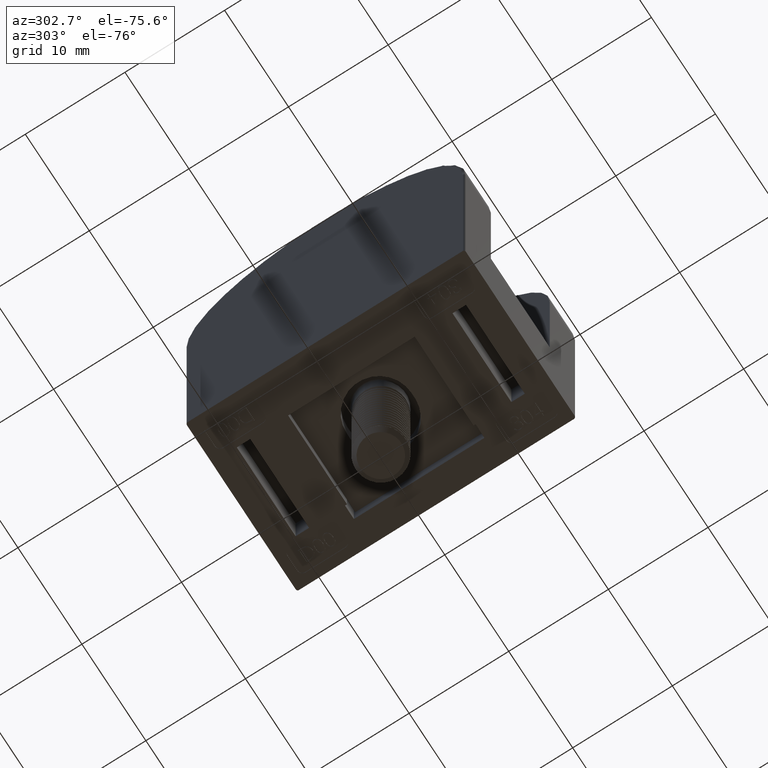
[diagram: clean part render]
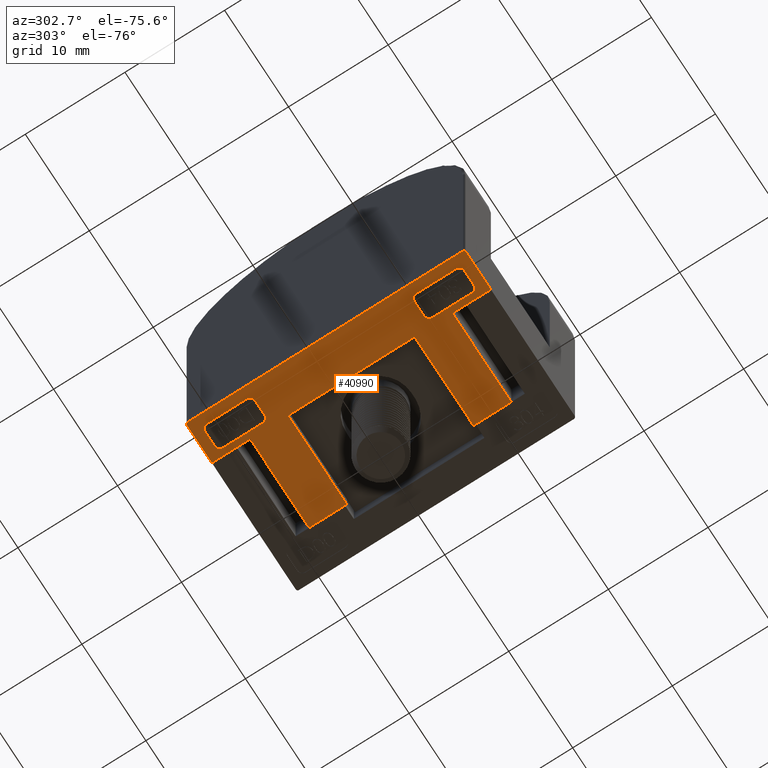
[diagram: same view with one face highlighted and labeled with its STEP entity id]
A machine part, auxiliary view. The second image highlights one B-rep face of the part: STEP entity #40990.
In plain terms, the highlighted planar face has unit normal (0, 0, 1).
Its self-contained STEP definition (entity closure, byte-faithful):
#13 = CARTESIAN_POINT ( 'NONE',  ( 13.29999999999999900, 6.350000000000008500, -1.914145517036476900E-015 ) ) ;
#521 = CIRCLE ( 'NONE', #36528, 0.5000000000000000000 ) ;
#989 = VERTEX_POINT ( 'NONE', #28238 ) ;
#1616 = VERTEX_POINT ( 'NONE', #13016 ) ;
#1742 = EDGE_CURVE ( 'NONE', #30986, #40686, #20142, .T. ) ;
#1923 = EDGE_CURVE ( 'NONE', #45114, #13821, #29568, .T. ) ;
#2369 = CARTESIAN_POINT ( 'NONE',  ( 1.000000000000000000, -8.499999999999992900, 0.0000000000000000000 ) ) ;
#2475 = LINE ( 'NONE', #40450, #10675 ) ;
#2827 = VECTOR ( 'NONE', #51749, 1000.000000000000000 ) ;
#2835 = ORIENTED_EDGE ( 'NONE', *, *, #1923, .F. ) ;
#2936 = CARTESIAN_POINT ( 'NONE',  ( 4.099999999999999600, 13.99999999999999500, -3.469446951953614200E-015 ) ) ;
#3229 = EDGE_CURVE ( 'NONE', #1616, #44815, #50293, .T. ) ;
#3264 = DIRECTION ( 'NONE',  ( 1.000000000000000000, 0.0000000000000000000, 0.0000000000000000000 ) ) ;
#3273 = CARTESIAN_POINT ( 'NONE',  ( 0.0000000000000000000, 13.99999999999999500, -3.469446951953614200E-015 ) ) ;
#3366 = DIRECTION ( 'NONE',  ( 0.0000000000000000000, 1.000000000000000000, 1.667627088515426900E-017 ) ) ;
#3613 = CARTESIAN_POINT ( 'NONE',  ( 4.099999999999999600, 13.99999999999999500, -3.469446951953614200E-015 ) ) ;
#3761 = EDGE_CURVE ( 'NONE', #38984, #26485, #37691, .T. ) ;
#3776 = DIRECTION ( 'NONE',  ( -0.0000000000000000000, 0.0000000000000000000, 1.000000000000000000 ) ) ;
#4058 = CARTESIAN_POINT ( 'NONE',  ( 4.099999999999999600, 13.99999999999999500, -3.469446951953614200E-015 ) ) ;
#4098 = LINE ( 'NONE', #3273, #2827 ) ;
#4386 = DIRECTION ( 'NONE',  ( 1.000000000000000000, 0.0000000000000000000, 0.0000000000000000000 ) ) ;
#4509 = CARTESIAN_POINT ( 'NONE',  ( 3.500000000000003100, 12.99999999999999500, 0.0000000000000000000 ) ) ;
#4511 = LINE ( 'NONE', #11097, #19596 ) ;
#4611 = VECTOR ( 'NONE', #21403, 1000.000000000000000 ) ;
#4650 = EDGE_CURVE ( 'NONE', #16812, #7437, #40786, .T. ) ;
#4991 = VECTOR ( 'NONE', #26913, 1000.000000000000000 ) ;
#5034 = DIRECTION ( 'NONE',  ( 1.000000000000000000, -0.0000000000000000000, -0.0000000000000000000 ) ) ;
#5418 = EDGE_CURVE ( 'NONE', #16396, #989, #27471, .T. ) ;
#5456 = ORIENTED_EDGE ( 'NONE', *, *, #19888, .F. ) ;
#5499 = DIRECTION ( 'NONE',  ( -0.0000000000000000000, 0.0000000000000000000, 1.000000000000000000 ) ) ;
#5756 = EDGE_LOOP ( 'NONE', ( #5764, #39225, #5963, #27044, #43370, #19225, #44961, #10382 ) ) ;
#5764 = ORIENTED_EDGE ( 'NONE', *, *, #7329, .F. ) ;
#5780 = LINE ( 'NONE', #23715, #11974 ) ;
#5963 = ORIENTED_EDGE ( 'NONE', *, *, #33154, .F. ) ;
#6050 = EDGE_CURVE ( 'NONE', #34188, #26385, #4098, .T. ) ;
#6167 = EDGE_CURVE ( 'NONE', #30188, #32913, #40630, .T. ) ;
#6500 = EDGE_CURVE ( 'NONE', #13821, #20609, #34355, .T. ) ;
#6503 = LINE ( 'NONE', #31991, #24115 ) ;
#6581 = AXIS2_PLACEMENT_3D ( 'NONE', #29628, #5499, #13771 ) ;
#6658 = EDGE_CURVE ( 'NONE', #13026, #34188, #33105, .T. ) ;
#6807 = ORIENTED_EDGE ( 'NONE', *, *, #41637, .T. ) ;
#6836 = DIRECTION ( 'NONE',  ( 1.000000000000000000, 0.0000000000000000000, 0.0000000000000000000 ) ) ;
#7154 = LINE ( 'NONE', #29375, #4611 ) ;
#7187 = DIRECTION ( 'NONE',  ( -0.0000000000000000000, 1.000000000000000000, -0.0000000000000000000 ) ) ;
#7329 = EDGE_CURVE ( 'NONE', #1616, #23946, #7154, .T. ) ;
#7350 = DIRECTION ( 'NONE',  ( -0.0000000000000000000, 0.0000000000000000000, 1.000000000000000000 ) ) ;
#7437 = VERTEX_POINT ( 'NONE', #12408 ) ;
#7568 = ORIENTED_EDGE ( 'NONE', *, *, #23314, .T. ) ;
#7590 = LINE ( 'NONE', #41300, #24623 ) ;
#7678 = LINE ( 'NONE', #49278, #49924 ) ;
#7797 = VECTOR ( 'NONE', #5034, 1000.000000000000000 ) ;
#8003 = LINE ( 'NONE', #8649, #49634 ) ;
#8010 = DIRECTION ( 'NONE',  ( 0.0000000000000000000, 1.000000000000000000, 0.0000000000000000000 ) ) ;
#8200 = AXIS2_PLACEMENT_3D ( 'NONE', #10689, #34507, #18603 ) ;
#8274 = CARTESIAN_POINT ( 'NONE',  ( 13.29999999999999900, -10.14999999999999900, -4.336808689942017700E-015 ) ) ;
#8321 = VERTEX_POINT ( 'NONE', #4058 ) ;
#8355 = DIRECTION ( 'NONE',  ( -0.0000000000000000000, 0.0000000000000000000, 1.000000000000000000 ) ) ;
#8649 = CARTESIAN_POINT ( 'NONE',  ( 3.500000000000000000, -7.999999999999992900, -0.0000000000000000000 ) ) ;
#9986 = VECTOR ( 'NONE', #3366, 1000.000000000000000 ) ;
#10208 = ORIENTED_EDGE ( 'NONE', *, *, #19984, .T. ) ;
#10356 = VERTEX_POINT ( 'NONE', #10559 ) ;
#10382 = ORIENTED_EDGE ( 'NONE', *, *, #26842, .T. ) ;
#10490 = VERTEX_POINT ( 'NONE', #27824 ) ;
#10559 = CARTESIAN_POINT ( 'NONE',  ( 13.29999999999999900, -6.350000000000006800, -3.469446951953617300E-015 ) ) ;
#10592 = ORIENTED_EDGE ( 'NONE', *, *, #28335, .F. ) ;
#10675 = VECTOR ( 'NONE', #36570, 1000.000000000000000 ) ;
#10689 = CARTESIAN_POINT ( 'NONE',  ( 3.000000000000000000, -12.49999999999999300, -3.469446951953614200E-015 ) ) ;
#10735 = DIRECTION ( 'NONE',  ( -1.000000000000000000, -0.0000000000000000000, -0.0000000000000000000 ) ) ;
#11059 = CARTESIAN_POINT ( 'NONE',  ( 1.000000000000000000, -12.49999999999999300, 0.0000000000000000000 ) ) ;
#11097 = CARTESIAN_POINT ( 'NONE',  ( 13.29999999999999900, -10.14999999999999900, -4.336808689942017700E-015 ) ) ;
#11206 = CARTESIAN_POINT ( 'NONE',  ( 3.000000000000002200, 8.499999999999992900, -3.469446951953614200E-015 ) ) ;
#11262 = AXIS2_PLACEMENT_3D ( 'NONE', #50019, #37855, #13351 ) ;
#11305 = CARTESIAN_POINT ( 'NONE',  ( 0.2000000000000000900, -13.99999999999999500, -3.469446951953614200E-015 ) ) ;
#11320 = EDGE_LOOP ( 'NONE', ( #17986, #10208, #13362, #34769, #16205, #39282, #23178, #43586 ) ) ;
#11974 = VECTOR ( 'NONE', #21221, 1000.000000000000000 ) ;
#12408 = CARTESIAN_POINT ( 'NONE',  ( 3.500000000000000000, -12.49999999999999300, 0.0000000000000000000 ) ) ;
#12913 = DIRECTION ( 'NONE',  ( -1.000000000000000000, -0.0000000000000000000, -0.0000000000000000000 ) ) ;
#13016 = CARTESIAN_POINT ( 'NONE',  ( 3.500000000000003100, 12.49999999999999300, 0.0000000000000000000 ) ) ;
#13026 = VERTEX_POINT ( 'NONE', #11305 ) ;
#13351 = DIRECTION ( 'NONE',  ( 1.000000000000000000, 0.0000000000000000000, 0.0000000000000000000 ) ) ;
#13362 = ORIENTED_EDGE ( 'NONE', *, *, #35355, .F. ) ;
#13369 = AXIS2_PLACEMENT_3D ( 'NONE', #17947, #21645, #38088 ) ;
#13754 = AXIS2_PLACEMENT_3D ( 'NONE', #33131, #25000, #4386 ) ;
#13771 = DIRECTION ( 'NONE',  ( 1.000000000000000000, 0.0000000000000000000, 0.0000000000000000000 ) ) ;
#13821 = VERTEX_POINT ( 'NONE', #14239 ) ;
#13917 = ORIENTED_EDGE ( 'NONE', *, *, #18704, .F. ) ;
#14051 = EDGE_CURVE ( 'NONE', #10356, #25563, #5780, .T. ) ;
#14179 = EDGE_LOOP ( 'NONE', ( #19019, #20283, #42380, #7568, #10592, #34937, #31998, #2835, #6807, #13917, #42780, #5456, #41674, #26052 ) ) ;
#14239 = CARTESIAN_POINT ( 'NONE',  ( 13.29999999999999900, 10.14999999999999900, -1.850775687672890800E-015 ) ) ;
#14696 = CARTESIAN_POINT ( 'NONE',  ( 3.500000000000000000, -12.99999999999999500, -0.0000000000000000000 ) ) ;
#15376 = CARTESIAN_POINT ( 'NONE',  ( 3.000000000000000000, -12.99999999999999500, 0.0000000000000000000 ) ) ;
#15476 = DIRECTION ( 'NONE',  ( -0.0000000000000000000, -1.000000000000000000, -0.0000000000000000000 ) ) ;
#16157 = DIRECTION ( 'NONE',  ( 0.0000000000000000000, -0.0000000000000000000, -1.000000000000000000 ) ) ;
#16205 = ORIENTED_EDGE ( 'NONE', *, *, #35147, .F. ) ;
#16370 = FACE_BOUND ( 'NONE', #5756, .T. ) ;
#16396 = VERTEX_POINT ( 'NONE', #32404 ) ;
#16812 = VERTEX_POINT ( 'NONE', #15376 ) ;
#17543 = VERTEX_POINT ( 'NONE', #50042 ) ;
#17613 = EDGE_CURVE ( 'NONE', #20609, #8321, #21158, .T. ) ;
#17947 = CARTESIAN_POINT ( 'NONE',  ( 4.099999999999999600, 13.99999999999999500, -3.469446951953614200E-015 ) ) ;
#17986 = ORIENTED_EDGE ( 'NONE', *, *, #35803, .F. ) ;
#18594 = CARTESIAN_POINT ( 'NONE',  ( 13.29999999999999900, -6.350000000000006800, -3.469446951953617300E-015 ) ) ;
#18603 = DIRECTION ( 'NONE',  ( 1.000000000000000000, 0.0000000000000000000, 0.0000000000000000000 ) ) ;
#18704 = EDGE_CURVE ( 'NONE', #25563, #48900, #19183, .T. ) ;
#18734 = CARTESIAN_POINT ( 'NONE',  ( 13.29999999999999900, 6.350000000000008500, -1.914145517036476900E-015 ) ) ;
#19019 = ORIENTED_EDGE ( 'NONE', *, *, #41415, .T. ) ;
#19183 = LINE ( 'NONE', #2936, #38743 ) ;
#19225 = ORIENTED_EDGE ( 'NONE', *, *, #1742, .T. ) ;
#19406 = CARTESIAN_POINT ( 'NONE',  ( 3.500000000000002200, 7.999999999999992900, 0.0000000000000000000 ) ) ;
#19596 = VECTOR ( 'NONE', #27153, 1000.000000000000000 ) ;
#19888 = EDGE_CURVE ( 'NONE', #42707, #10356, #21324, .T. ) ;
#19984 = EDGE_CURVE ( 'NONE', #10490, #34268, #521, .T. ) ;
#20074 = DIRECTION ( 'NONE',  ( 1.000000000000000000, -0.0000000000000000000, -0.0000000000000000000 ) ) ;
#20142 = CIRCLE ( 'NONE', #11262, 0.5000000000000000000 ) ;
#20283 = ORIENTED_EDGE ( 'NONE', *, *, #6658, .T. ) ;
#20391 = CARTESIAN_POINT ( 'NONE',  ( 0.2000000000000000900, 13.99999999999999500, -3.469446951953614200E-015 ) ) ;
#20609 = VERTEX_POINT ( 'NONE', #51282 ) ;
#20812 = VECTOR ( 'NONE', #27726, 1000.000000000000000 ) ;
#20990 = CARTESIAN_POINT ( 'NONE',  ( 3.000000000000000000, -8.499999999999992900, -3.469446951953614200E-015 ) ) ;
#21158 = LINE ( 'NONE', #38050, #48322 ) ;
#21221 = DIRECTION ( 'NONE',  ( -1.000000000000000000, -0.0000000000000000000, -0.0000000000000000000 ) ) ;
#21324 = LINE ( 'NONE', #18594, #4991 ) ;
#21403 = DIRECTION ( 'NONE',  ( -1.734723475976806800E-016, -1.000000000000000000, 0.0000000000000000000 ) ) ;
#21410 = FACE_OUTER_BOUND ( 'NONE', #14179, .T. ) ;
#21535 = VERTEX_POINT ( 'NONE', #20391 ) ;
#21645 = DIRECTION ( 'NONE',  ( -0.0000000000000000000, 0.0000000000000000000, 1.000000000000000000 ) ) ;
#21953 = DIRECTION ( 'NONE',  ( -0.0000000000000000000, 1.000000000000000000, -0.0000000000000000000 ) ) ;
#23035 = AXIS2_PLACEMENT_3D ( 'NONE', #28697, #16157, #36464 ) ;
#23178 = ORIENTED_EDGE ( 'NONE', *, *, #33760, .F. ) ;
#23314 = EDGE_CURVE ( 'NONE', #26385, #21535, #28432, .T. ) ;
#23715 = CARTESIAN_POINT ( 'NONE',  ( 13.29999999999999900, -6.350000000000006800, -3.469446951953617300E-015 ) ) ;
#23762 = CARTESIAN_POINT ( 'NONE',  ( 4.099999999999999600, -10.14999999999999900, -4.336808689942017700E-015 ) ) ;
#23946 = VERTEX_POINT ( 'NONE', #52080 ) ;
#24115 = VECTOR ( 'NONE', #8010, 1000.000000000000000 ) ;
#24600 = CARTESIAN_POINT ( 'NONE',  ( 3.000000000000003100, 12.99999999999999500, 0.0000000000000000000 ) ) ;
#24623 = VECTOR ( 'NONE', #12913, 1000.000000000000000 ) ;
#25000 = DIRECTION ( 'NONE',  ( -0.0000000000000000000, 0.0000000000000000000, 1.000000000000000000 ) ) ;
#25109 = DIRECTION ( 'NONE',  ( 2.602085213965210100E-016, 1.000000000000000000, -0.0000000000000000000 ) ) ;
#25563 = VERTEX_POINT ( 'NONE', #49526 ) ;
#26052 = ORIENTED_EDGE ( 'NONE', *, *, #3761, .F. ) ;
#26385 = VERTEX_POINT ( 'NONE', #50794 ) ;
#26485 = VERTEX_POINT ( 'NONE', #23762 ) ;
#26842 = EDGE_CURVE ( 'NONE', #17543, #23946, #29730, .T. ) ;
#26913 = DIRECTION ( 'NONE',  ( -0.0000000000000000000, 1.000000000000000000, 2.282530889443164100E-016 ) ) ;
#27044 = ORIENTED_EDGE ( 'NONE', *, *, #6167, .T. ) ;
#27153 = DIRECTION ( 'NONE',  ( -1.000000000000000000, -0.0000000000000000000, -0.0000000000000000000 ) ) ;
#27471 = CIRCLE ( 'NONE', #30809, 0.5000000000000000000 ) ;
#27500 = EDGE_CURVE ( 'NONE', #42707, #26485, #4511, .T. ) ;
#27726 = DIRECTION ( 'NONE',  ( -1.000000000000000000, 0.0000000000000000000, 0.0000000000000000000 ) ) ;
#27767 = DIRECTION ( 'NONE',  ( -0.0000000000000000000, 0.0000000000000000000, 1.000000000000000000 ) ) ;
#27776 = LINE ( 'NONE', #46484, #47326 ) ;
#27824 = CARTESIAN_POINT ( 'NONE',  ( 1.500000000000000000, -7.999999999999992900, 0.0000000000000000000 ) ) ;
#28238 = CARTESIAN_POINT ( 'NONE',  ( 3.000000000000000000, -7.999999999999992900, 0.0000000000000000000 ) ) ;
#28260 = EDGE_CURVE ( 'NONE', #17543, #40686, #46694, .T. ) ;
#28333 = CARTESIAN_POINT ( 'NONE',  ( 4.099999999999999600, -13.99999999999999500, -3.469446951953614200E-015 ) ) ;
#28335 = EDGE_CURVE ( 'NONE', #8321, #21535, #7590, .T. ) ;
#28378 = FACE_BOUND ( 'NONE', #11320, .T. ) ;
#28432 = CIRCLE ( 'NONE', #38616, 0.1999999999999999800 ) ;
#28697 = CARTESIAN_POINT ( 'NONE',  ( 0.2000000000000000900, -13.79999999999999500, -3.469446951953614200E-015 ) ) ;
#28828 = VECTOR ( 'NONE', #43839, 1000.000000000000000 ) ;
#29192 = VECTOR ( 'NONE', #34641, 1000.000000000000000 ) ;
#29375 = CARTESIAN_POINT ( 'NONE',  ( 3.500000000000003100, 12.99999999999999500, 0.0000000000000000000 ) ) ;
#29568 = LINE ( 'NONE', #13, #9986 ) ;
#29628 = CARTESIAN_POINT ( 'NONE',  ( 3.000000000000003100, 12.49999999999999300, -3.469446951953614200E-015 ) ) ;
#29730 = CIRCLE ( 'NONE', #42109, 0.5000000000000000000 ) ;
#30188 = VERTEX_POINT ( 'NONE', #33133 ) ;
#30809 = AXIS2_PLACEMENT_3D ( 'NONE', #20990, #8355, #44841 ) ;
#30986 = VERTEX_POINT ( 'NONE', #36216 ) ;
#31064 = LINE ( 'NONE', #14696, #29192 ) ;
#31537 = VERTEX_POINT ( 'NONE', #51496 ) ;
#31991 = CARTESIAN_POINT ( 'NONE',  ( 1.000000000000000000, -12.99999999999999500, -0.0000000000000000000 ) ) ;
#31998 = ORIENTED_EDGE ( 'NONE', *, *, #6500, .F. ) ;
#32393 = LINE ( 'NONE', #47455, #50756 ) ;
#32404 = CARTESIAN_POINT ( 'NONE',  ( 3.500000000000000000, -8.499999999999992900, 0.0000000000000000000 ) ) ;
#32913 = VERTEX_POINT ( 'NONE', #39648 ) ;
#33105 = CIRCLE ( 'NONE', #23035, 0.1999999999999999800 ) ;
#33131 = CARTESIAN_POINT ( 'NONE',  ( 1.500000000000000000, -12.49999999999999300, -3.469446951953614200E-015 ) ) ;
#33133 = CARTESIAN_POINT ( 'NONE',  ( 1.500000000000003100, 12.99999999999999500, 0.0000000000000000000 ) ) ;
#33154 = EDGE_CURVE ( 'NONE', #30188, #44815, #49450, .T. ) ;
#33760 = EDGE_CURVE ( 'NONE', #16396, #7437, #32393, .T. ) ;
#34188 = VERTEX_POINT ( 'NONE', #37999 ) ;
#34268 = VERTEX_POINT ( 'NONE', #2369 ) ;
#34355 = LINE ( 'NONE', #51285, #43832 ) ;
#34507 = DIRECTION ( 'NONE',  ( -0.0000000000000000000, 0.0000000000000000000, 1.000000000000000000 ) ) ;
#34641 = DIRECTION ( 'NONE',  ( -1.000000000000000000, 0.0000000000000000000, 0.0000000000000000000 ) ) ;
#34769 = ORIENTED_EDGE ( 'NONE', *, *, #45653, .T. ) ;
#34937 = ORIENTED_EDGE ( 'NONE', *, *, #17613, .F. ) ;
#35147 = EDGE_CURVE ( 'NONE', #16812, #31537, #31064, .T. ) ;
#35355 = EDGE_CURVE ( 'NONE', #40286, #34268, #6503, .T. ) ;
#35803 = EDGE_CURVE ( 'NONE', #10490, #989, #8003, .T. ) ;
#35873 = CARTESIAN_POINT ( 'NONE',  ( 1.500000000000000000, -8.499999999999992900, -3.469446951953614200E-015 ) ) ;
#36216 = CARTESIAN_POINT ( 'NONE',  ( 1.000000000000002200, 8.499999999999992900, 0.0000000000000000000 ) ) ;
#36464 = DIRECTION ( 'NONE',  ( 1.000000000000000000, 0.0000000000000000000, 0.0000000000000000000 ) ) ;
#36528 = AXIS2_PLACEMENT_3D ( 'NONE', #35873, #27767, #3264 ) ;
#36570 = DIRECTION ( 'NONE',  ( -1.000000000000000000, -0.0000000000000000000, -0.0000000000000000000 ) ) ;
#37691 = LINE ( 'NONE', #3613, #28828 ) ;
#37855 = DIRECTION ( 'NONE',  ( -0.0000000000000000000, 0.0000000000000000000, 1.000000000000000000 ) ) ;
#37999 = CARTESIAN_POINT ( 'NONE',  ( 0.0000000000000000000, -13.79999999999999700, -3.469446951953614200E-015 ) ) ;
#38050 = CARTESIAN_POINT ( 'NONE',  ( 4.099999999999999600, 13.99999999999999500, -3.469446951953614200E-015 ) ) ;
#38088 = DIRECTION ( 'NONE',  ( 1.000000000000000000, 0.0000000000000000000, 0.0000000000000000000 ) ) ;
#38616 = AXIS2_PLACEMENT_3D ( 'NONE', #39509, #50989, #47642 ) ;
#38743 = VECTOR ( 'NONE', #7187, 1000.000000000000000 ) ;
#38984 = VERTEX_POINT ( 'NONE', #28333 ) ;
#39225 = ORIENTED_EDGE ( 'NONE', *, *, #3229, .T. ) ;
#39282 = ORIENTED_EDGE ( 'NONE', *, *, #4650, .T. ) ;
#39509 = CARTESIAN_POINT ( 'NONE',  ( 0.2000000000000000900, 13.79999999999999500, -3.469446951953614200E-015 ) ) ;
#39648 = CARTESIAN_POINT ( 'NONE',  ( 1.000000000000003100, 12.49999999999999300, 0.0000000000000000000 ) ) ;
#40286 = VERTEX_POINT ( 'NONE', #11059 ) ;
#40450 = CARTESIAN_POINT ( 'NONE',  ( 13.29999999999999900, 6.350000000000008500, -1.914145517036476900E-015 ) ) ;
#40630 = CIRCLE ( 'NONE', #43026, 0.5000000000000000000 ) ;
#40686 = VERTEX_POINT ( 'NONE', #47838 ) ;
#40786 = CIRCLE ( 'NONE', #8200, 0.5000000000000000000 ) ;
#40990 = ADVANCED_FACE ( 'NONE', ( #16370, #28378, #21410 ), #49735, .F. ) ;
#41300 = CARTESIAN_POINT ( 'NONE',  ( 4.099999999999999600, 13.99999999999999500, -3.469446951953614200E-015 ) ) ;
#41415 = EDGE_CURVE ( 'NONE', #38984, #13026, #27776, .T. ) ;
#41637 = EDGE_CURVE ( 'NONE', #45114, #48900, #2475, .T. ) ;
#41674 = ORIENTED_EDGE ( 'NONE', *, *, #27500, .T. ) ;
#42109 = AXIS2_PLACEMENT_3D ( 'NONE', #11206, #7350, #6836 ) ;
#42380 = ORIENTED_EDGE ( 'NONE', *, *, #6050, .T. ) ;
#42707 = VERTEX_POINT ( 'NONE', #8274 ) ;
#42780 = ORIENTED_EDGE ( 'NONE', *, *, #14051, .F. ) ;
#43026 = AXIS2_PLACEMENT_3D ( 'NONE', #48586, #3776, #44538 ) ;
#43370 = ORIENTED_EDGE ( 'NONE', *, *, #51151, .F. ) ;
#43586 = ORIENTED_EDGE ( 'NONE', *, *, #5418, .T. ) ;
#43832 = VECTOR ( 'NONE', #10735, 1000.000000000000000 ) ;
#43839 = DIRECTION ( 'NONE',  ( -0.0000000000000000000, 1.000000000000000000, -0.0000000000000000000 ) ) ;
#43923 = CARTESIAN_POINT ( 'NONE',  ( 4.099999999999999600, 6.350000000000003200, -3.469446951953614200E-015 ) ) ;
#44538 = DIRECTION ( 'NONE',  ( 1.000000000000000000, 0.0000000000000000000, 0.0000000000000000000 ) ) ;
#44815 = VERTEX_POINT ( 'NONE', #24600 ) ;
#44841 = DIRECTION ( 'NONE',  ( 1.000000000000000000, 0.0000000000000000000, 0.0000000000000000000 ) ) ;
#44961 = ORIENTED_EDGE ( 'NONE', *, *, #28260, .F. ) ;
#45114 = VERTEX_POINT ( 'NONE', #18734 ) ;
#45653 = EDGE_CURVE ( 'NONE', #40286, #31537, #47693, .T. ) ;
#45781 = DIRECTION ( 'NONE',  ( -1.000000000000000000, -0.0000000000000000000, -0.0000000000000000000 ) ) ;
#46484 = CARTESIAN_POINT ( 'NONE',  ( 4.099999999999999600, -13.99999999999999500, -3.469446951953614200E-015 ) ) ;
#46694 = LINE ( 'NONE', #19406, #20812 ) ;
#47326 = VECTOR ( 'NONE', #45781, 1000.000000000000000 ) ;
#47455 = CARTESIAN_POINT ( 'NONE',  ( 3.500000000000000000, -12.99999999999999500, -0.0000000000000000000 ) ) ;
#47642 = DIRECTION ( 'NONE',  ( 1.000000000000000000, 0.0000000000000000000, 0.0000000000000000000 ) ) ;
#47693 = CIRCLE ( 'NONE', #13754, 0.5000000000000000000 ) ;
#47838 = CARTESIAN_POINT ( 'NONE',  ( 1.500000000000002200, 7.999999999999992900, 0.0000000000000000000 ) ) ;
#48322 = VECTOR ( 'NONE', #21953, 1000.000000000000000 ) ;
#48586 = CARTESIAN_POINT ( 'NONE',  ( 1.500000000000003100, 12.49999999999999300, -3.469446951953614200E-015 ) ) ;
#48900 = VERTEX_POINT ( 'NONE', #43923 ) ;
#49278 = CARTESIAN_POINT ( 'NONE',  ( 1.000000000000003300, 12.99999999999999500, 0.0000000000000000000 ) ) ;
#49450 = LINE ( 'NONE', #4509, #7797 ) ;
#49526 = CARTESIAN_POINT ( 'NONE',  ( 4.099999999999999600, -6.350000000000006800, -3.469446951953617300E-015 ) ) ;
#49634 = VECTOR ( 'NONE', #20074, 1000.000000000000000 ) ;
#49735 = PLANE ( 'NONE',  #13369 ) ;
#49924 = VECTOR ( 'NONE', #25109, 1000.000000000000000 ) ;
#50019 = CARTESIAN_POINT ( 'NONE',  ( 1.500000000000002200, 8.499999999999992900, -3.469446951953614200E-015 ) ) ;
#50042 = CARTESIAN_POINT ( 'NONE',  ( 3.000000000000002200, 7.999999999999992900, 0.0000000000000000000 ) ) ;
#50293 = CIRCLE ( 'NONE', #6581, 0.5000000000000000000 ) ;
#50756 = VECTOR ( 'NONE', #15476, 1000.000000000000000 ) ;
#50794 = CARTESIAN_POINT ( 'NONE',  ( 0.0000000000000000000, 13.79999999999999500, -3.469446951953614200E-015 ) ) ;
#50989 = DIRECTION ( 'NONE',  ( 0.0000000000000000000, -0.0000000000000000000, -1.000000000000000000 ) ) ;
#51151 = EDGE_CURVE ( 'NONE', #30986, #32913, #7678, .T. ) ;
#51282 = CARTESIAN_POINT ( 'NONE',  ( 4.099999999999999600, 10.14999999999999900, -3.469446951953614200E-015 ) ) ;
#51285 = CARTESIAN_POINT ( 'NONE',  ( 13.29999999999999900, 10.14999999999999900, -1.850775687672890800E-015 ) ) ;
#51496 = CARTESIAN_POINT ( 'NONE',  ( 1.500000000000000000, -12.99999999999999500, 0.0000000000000000000 ) ) ;
#51749 = DIRECTION ( 'NONE',  ( -0.0000000000000000000, 1.000000000000000000, -0.0000000000000000000 ) ) ;
#52080 = CARTESIAN_POINT ( 'NONE',  ( 3.500000000000002200, 8.499999999999992900, 0.0000000000000000000 ) ) ;